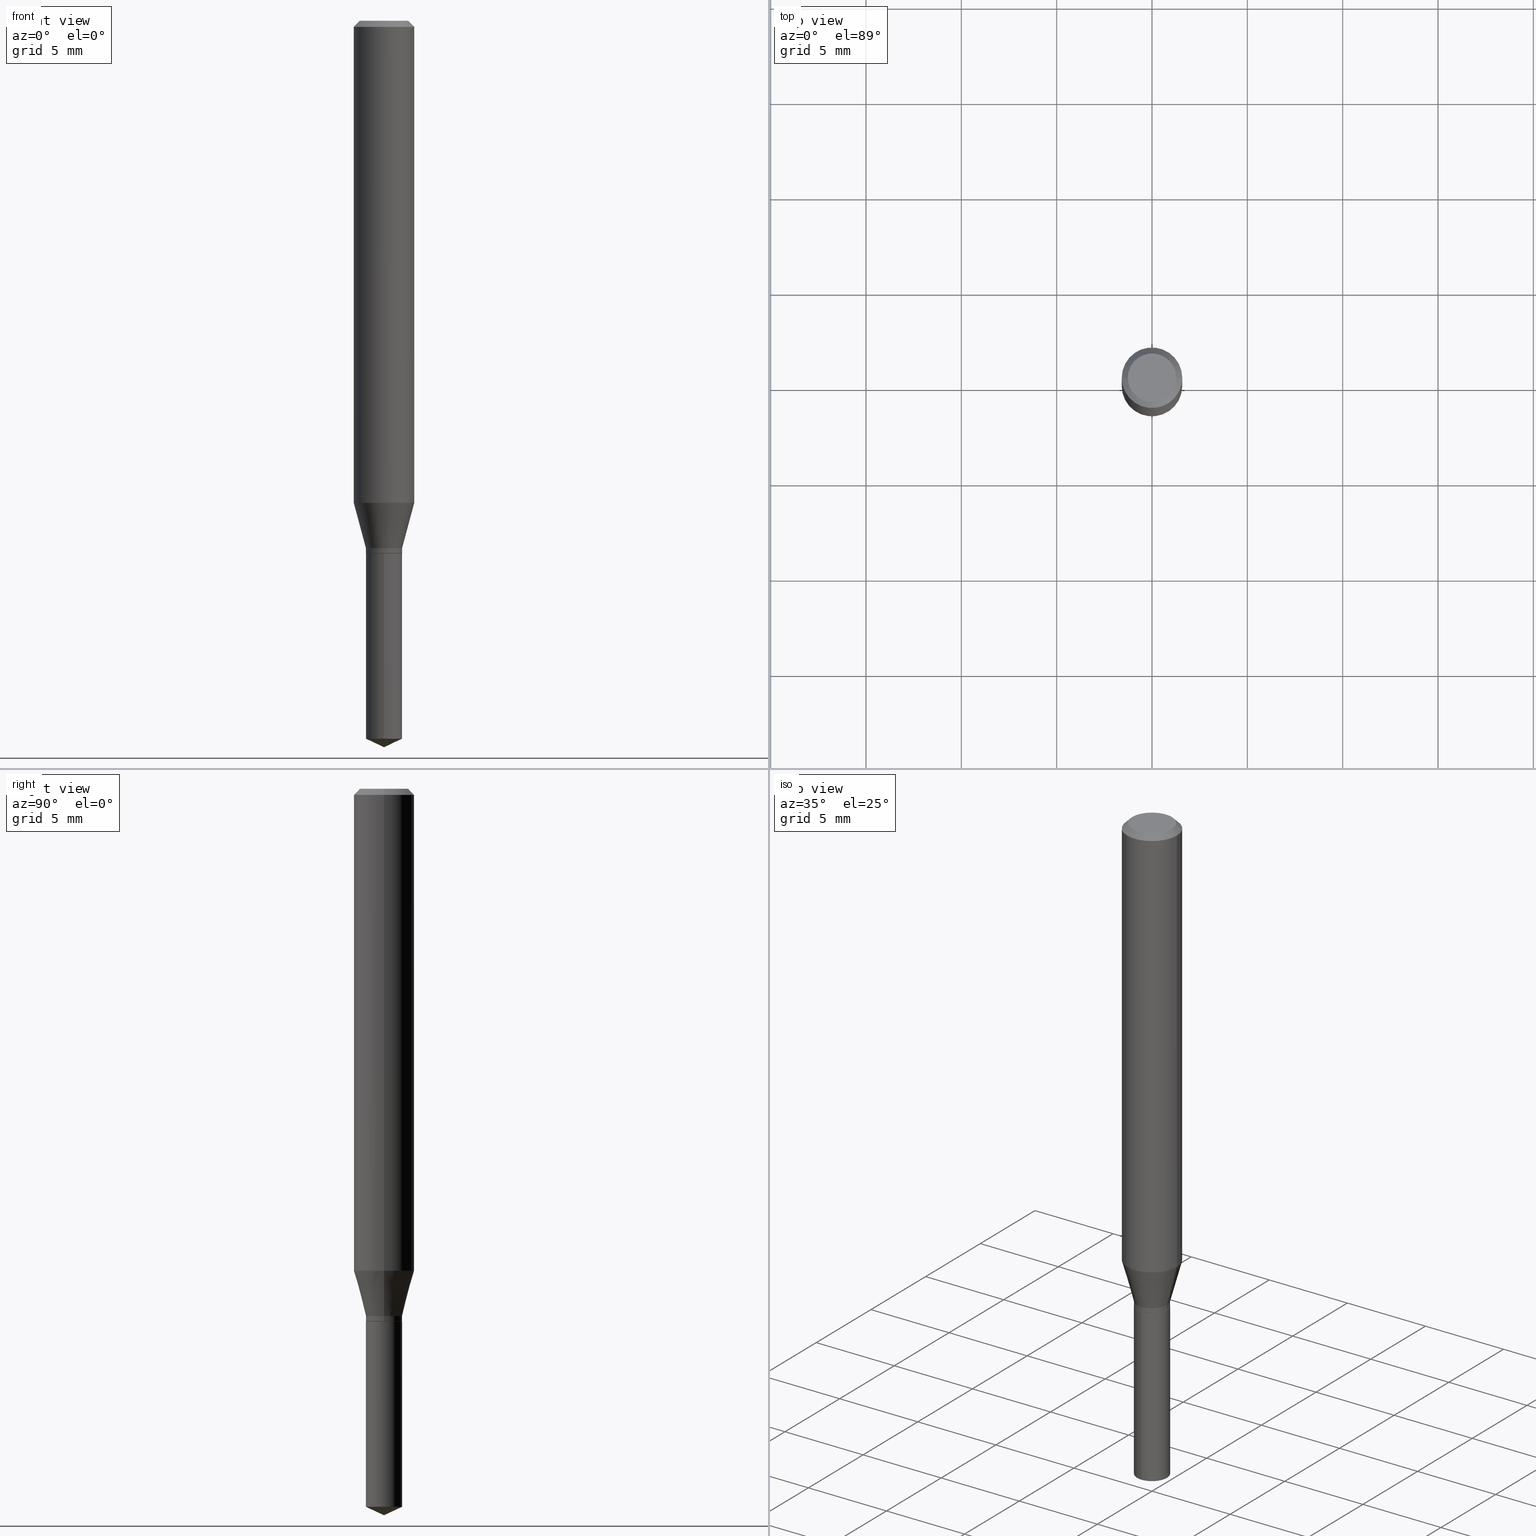
[diagram: canonical four-view strip — front | top / right | iso, engineering-drawing reading convention]
A machine part, canonical four-view strip (front | top / right | iso — engineering-drawing reading convention). The complete STEP part file that produces these views, byte-faithful:
ISO-10303-21;
HEADER;
FILE_DESCRIPTION (( 'STEP AP203' ),
    '1' );
FILE_NAME ('07184.STEP',
    '2024-04-23T19:55:12',
    ( '' ),
    ( '' ),
    'SwSTEP 2.0',
    'SolidWorks 2023',
    '' );
FILE_SCHEMA (( 'CONFIG_CONTROL_DESIGN' ));
ENDSEC;

DATA;
#1 = FACE_OUTER_BOUND ( 'NONE', #66, .T. ) ;
#2 = DIRECTION ( 'NONE',  ( -2.445468806185136877E-29, 3.491481338843145188E-15, 1.000000000000000000 ) ) ;
#3 = CYLINDRICAL_SURFACE ( 'NONE', #61, 0.06250000000000005551 ) ;
#4 = VERTEX_POINT ( 'NONE', #261 ) ;
#5 =( GEOMETRIC_REPRESENTATION_CONTEXT ( 3 ) GLOBAL_UNCERTAINTY_ASSIGNED_CONTEXT ( ( #307 ) ) GLOBAL_UNIT_ASSIGNED_CONTEXT ( ( #13, #126, #433 ) ) REPRESENTATION_CONTEXT ( 'NONE', 'WORKASPACE' ) );
#6 = CARTESIAN_POINT ( 'NONE',  ( 3.056836007731440977E-31, -4.364351673553961068E-17, -0.01250000000000008223 ) ) ;
#7 = CARTESIAN_POINT ( 'NONE',  ( -0.03740000000000000269, -3.554461323720950725E-15, -1.099499999999999922 ) ) ;
#8 = LINE ( 'NONE', #427, #336 ) ;
#9 = DIRECTION ( 'NONE',  ( 6.439704144417030353E-15, 0.9063077870366521571, 0.4226182617406946673 ) ) ;
#10 = DIRECTION ( 'NONE',  ( -6.328713451373374901E-15, -0.9063077870366492705, 0.4226182617407009956 ) ) ;
#11 = CARTESIAN_POINT ( 'NONE',  ( 0.06250000000000005551, -4.364351673553921131E-16, 3.047610484872463023E-30 ) ) ;
#12 = EDGE_CURVE ( 'NONE', #60, #82, #479, .T. ) ;
#13 =( CONVERSION_BASED_UNIT ( 'INCH', #247 ) LENGTH_UNIT ( ) NAMED_UNIT ( #16 ) );
#14 = DIRECTION ( 'NONE',  ( 1.000000000000000000, -6.982962677686264344E-15, 0.000000000000000000 ) ) ;
#15 = SECURITY_CLASSIFICATION_LEVEL ( 'unclassified' ) ;
#16 = DIMENSIONAL_EXPONENTS ( 1.000000000000000000, 0.000000000000000000, 0.000000000000000000, 0.000000000000000000, 0.000000000000000000, 0.000000000000000000, 0.000000000000000000 ) ;
#17 = DATE_AND_TIME ( #361, #39 ) ;
#18 = VERTEX_POINT ( 'NONE', #116 ) ;
#19 = EDGE_CURVE ( 'NONE', #219, #202, #324, .T. ) ;
#20 = CIRCLE ( 'NONE', #217, 0.03740000000000000269 ) ;
#21 = ORIENTED_EDGE ( 'NONE', *, *, #19, .T. ) ;
#22 = APPROVAL_ROLE ( '' ) ;
#23 = ADVANCED_BREP_SHAPE_REPRESENTATION ( '07184', ( #291, #308, #38 ), #5 ) ;
#24 = ORIENTED_EDGE ( 'NONE', *, *, #248, .T. ) ;
#25 = CARTESIAN_POINT ( 'NONE',  ( -2.611628041454301126E-16, -0.03740000000000517216, -1.482560093585003180 ) ) ;
#26 = ORIENTED_EDGE ( 'NONE', *, *, #473, .T. ) ;
#27 = FACE_OUTER_BOUND ( 'NONE', #255, .T. ) ;
#28 = CIRCLE ( 'NONE', #313, 0.03740000000000000269 ) ;
#29 = CONICAL_SURFACE ( 'NONE', #201, 0.06250000000000000000, 0.7853981633974452814 ) ;
#30 = VERTEX_POINT ( 'NONE', #463 ) ;
#31 = FACE_OUTER_BOUND ( 'NONE', #215, .T. ) ;
#32 = ORIENTED_EDGE ( 'NONE', *, *, #204, .T. ) ;
#33 = VERTEX_POINT ( 'NONE', #360 ) ;
#34 = CARTESIAN_POINT ( 'NONE',  ( 0.03690000000000000224, -4.098300795534083495E-15, -1.100000000000000089 ) ) ;
#35 = CARTESIAN_POINT ( 'NONE',  ( 0.03740000000000000269, -4.062687685877884033E-15, -1.088800000000000212 ) ) ;
#36 = EDGE_CURVE ( 'NONE', #437, #4, #328, .T. ) ;
#37 = CIRCLE ( 'NONE', #399, 0.03740000000000000269 ) ;
#38 = AXIS2_PLACEMENT_3D ( 'NONE', #323, #256, #164 ) ;
#39 = LOCAL_TIME ( 15, 55, 12.00000000000000000, #203 ) ;
#40 = ORIENTED_EDGE ( 'NONE', *, *, #12, .F. ) ;
#41 = DIRECTION ( 'NONE',  ( -2.445399690415121530E-29, 3.491580316559632610E-15, 1.000000000000000000 ) ) ;
#42 = DIRECTION ( 'NONE',  ( -2.445468806185136597E-29, 3.491481338843145583E-15, 1.000000000000000000 ) ) ;
#43 = EDGE_CURVE ( 'NONE', #141, #219, #37, .T. ) ;
#44 = CARTESIAN_POINT ( 'NONE',  ( -0.06250000000000005551, 4.440892098500630106E-16, -3.074334431409318916E-30 ) ) ;
#45 = LINE ( 'NONE', #11, #400 ) ;
#46 = AXIS2_PLACEMENT_3D ( 'NONE', #334, #304, #74 ) ;
#47 = AXIS2_PLACEMENT_3D ( 'NONE', #145, #391, #194 ) ;
#48 = DIRECTION ( 'NONE',  ( 1.000000000000000000, -6.982962677686266711E-15, 0.000000000000000000 ) ) ;
#49 = PLANE ( 'NONE',  #95 ) ;
#50 = EDGE_CURVE ( 'NONE', #33, #141, #275, .T. ) ;
#51 = DIRECTION ( 'NONE',  ( -2.445399690415121530E-29, 3.491580316559632610E-15, 1.000000000000000000 ) ) ;
#52 = COORDINATED_UNIVERSAL_TIME_OFFSET ( 5, 0, .BEHIND. ) ;
#53 = CIRCLE ( 'NONE', #46, 0.03740000000000000269 ) ;
#54 = DIRECTION ( 'NONE',  ( -2.445468806185136597E-29, 3.491481338843145583E-15, 1.000000000000000000 ) ) ;
#55 = APPROVAL_DATE_TIME ( #478, #310 ) ;
#56 = APPROVAL_STATUS ( 'not_yet_approved' ) ;
#57 = EDGE_CURVE ( 'NONE', #4, #437, #216, .T. ) ;
#58 = ORIENTED_EDGE ( 'NONE', *, *, #50, .T. ) ;
#59 = AXIS2_PLACEMENT_3D ( 'NONE', #279, #54, #14 ) ;
#60 = VERTEX_POINT ( 'NONE', #120 ) ;
#61 = AXIS2_PLACEMENT_3D ( 'NONE', #429, #393, #464 ) ;
#62 = CARTESIAN_POINT ( 'NONE',  ( 2.657429831743136776E-16, 0.03739999999999481933, -1.482560093585003180 ) ) ;
#63 = EDGE_LOOP ( 'NONE', ( #24, #107, #484, #446 ) ) ;
#64 = DIRECTION ( 'NONE',  ( -1.000000000000000000, 6.982962677686266711E-15, 0.000000000000000000 ) ) ;
#65 = EDGE_CURVE ( 'NONE', #333, #404, #344, .T. ) ;
#66 = EDGE_LOOP ( 'NONE', ( #142, #162, #233 ) ) ;
#67 = CLOSED_SHELL ( 'NONE', ( #179, #439, #305, #237, #483 ) ) ;
#68 = ORIENTED_EDGE ( 'NONE', *, *, #319, .T. ) ;
#69 = AXIS2_PLACEMENT_3D ( 'NONE', #210, #138, #413 ) ;
#70 = APPROVAL_PERSON_ORGANIZATION ( #130, #278, #468 ) ;
#71 = ORIENTED_EDGE ( 'NONE', *, *, #283, .F. ) ;
#72 = EDGE_CURVE ( 'NONE', #208, #363, #193, .T. ) ;
#73 = ORIENTED_EDGE ( 'NONE', *, *, #72, .T. ) ;
#74 = DIRECTION ( 'NONE',  ( -6.982962677686265922E-15, -1.000000000000000000, 3.652203200085913145E-15 ) ) ;
#75 = CC_DESIGN_PERSON_AND_ORGANIZATION_ASSIGNMENT ( #159, #99, ( #220 ) ) ;
#76 = EDGE_LOOP ( 'NONE', ( #174, #480, #444, #368 ) ) ;
#77 = CARTESIAN_POINT ( 'NONE',  ( 0.000000000000000000, 0.000000000000000000, 0.000000000000000000 ) ) ;
#78 = VECTOR ( 'NONE', #326, 39.37007874015748143 ) ;
#79 = VECTOR ( 'NONE', #223, 39.37007874015748143 ) ;
#80 = DIRECTION ( 'NONE',  ( -2.445468806185136597E-29, 3.491481338843145583E-15, 1.000000000000000000 ) ) ;
#81 = DIRECTION ( 'NONE',  ( -2.445399690415121810E-29, 3.491580316559632610E-15, 1.000000000000000000 ) ) ;
#82 = VERTEX_POINT ( 'NONE', #396 ) ;
#83 = CYLINDRICAL_SURFACE ( 'NONE', #418, 0.06250000000000005551 ) ;
#84 = CARTESIAN_POINT ( 'NONE',  ( 2.688792952400557567E-29, -3.838883732058038598E-15, -1.099499999999999922 ) ) ;
#85 = CARTESIAN_POINT ( 'NONE',  ( 3.668099535622682155E-29, -5.237370474839448718E-15, -1.500000000000000222 ) ) ;
#86 = FACE_OUTER_BOUND ( 'NONE', #297, .T. ) ;
#87 = CARTESIAN_POINT ( 'NONE',  ( -0.04999999999999999584, 3.709698922520826725E-16, -1.592040838894077649E-18 ) ) ;
#88 = CIRCLE ( 'NONE', #207, 0.03690000000000000224 ) ;
#89 = ADVANCED_FACE ( 'NONE', ( #92 ), #245, .T. ) ;
#90 = CARTESIAN_POINT ( 'NONE',  ( -0.06250000000000000000, -1.314963648218386938E-15, -0.01250000000000008223 ) ) ;
#91 = CC_DESIGN_PERSON_AND_ORGANIZATION_ASSIGNMENT ( #325, #287, ( #298 ) ) ;
#92 = FACE_OUTER_BOUND ( 'NONE', #448, .T. ) ;
#93 = FACE_OUTER_BOUND ( 'NONE', #412, .T. ) ;
#94 = CALENDAR_DATE ( 2024, 23, 4 ) ;
#95 = AXIS2_PLACEMENT_3D ( 'NONE', #188, #351, #113 ) ;
#96 = APPROVAL_STATUS ( 'not_yet_approved' ) ;
#97 = APPLICATION_PROTOCOL_DEFINITION ( 'international standard', 'config_control_design', 1994, #454 ) ;
#98 = ORIENTED_EDGE ( 'NONE', *, *, #347, .F. ) ;
#99 = PERSON_AND_ORGANIZATION_ROLE ( 'creator' ) ;
#100 = DIRECTION ( 'NONE',  ( -2.445468806185136597E-29, 3.491481338843145583E-15, 1.000000000000000000 ) ) ;
#101 = EDGE_CURVE ( 'NONE', #363, #487, #28, .T. ) ;
#102 = ORIENTED_EDGE ( 'NONE', *, *, #260, .T. ) ;
#103 = VECTOR ( 'NONE', #450, 39.37007874015748143 ) ;
#104 = AXIS2_PLACEMENT_3D ( 'NONE', #398, #311, #458 ) ;
#105 = DIRECTION ( 'NONE',  ( 1.000000000000000000, -6.982962677686261189E-15, 0.000000000000000000 ) ) ;
#106 = ORIENTED_EDGE ( 'NONE', *, *, #461, .T. ) ;
#107 = ORIENTED_EDGE ( 'NONE', *, *, #455, .T. ) ;
#108 = EDGE_LOOP ( 'NONE', ( #136, #205 ) ) ;
#109 = CARTESIAN_POINT ( 'NONE',  ( 2.662626436174376772E-29, -3.801524881732417633E-15, -1.088800000000000212 ) ) ;
#110 = CONICAL_SURFACE ( 'NONE', #481, 0.03690000000000000224, 0.7853981633974141952 ) ;
#111 = AXIS2_PLACEMENT_3D ( 'NONE', #77, #423, #266 ) ;
#112 = EDGE_CURVE ( 'NONE', #487, #331, #8, .T. ) ;
#113 = DIRECTION ( 'NONE',  ( 6.982962677686265922E-15, 1.000000000000000000, -3.491580316559632610E-15 ) ) ;
#114 = VECTOR ( 'NONE', #456, 39.37007874015748854 ) ;
#115 = DIRECTION ( 'NONE',  ( 1.000000000000000000, -6.982962677686267499E-15, 4.876176775795936353E-29 ) ) ;
#116 = CARTESIAN_POINT ( 'NONE',  ( -0.03690000000000000224, -3.575789976057872409E-15, -1.100000000000000089 ) ) ;
#117 = CARTESIAN_POINT ( 'NONE',  ( 2.662626436174376772E-29, -3.801524881732417633E-15, -1.088800000000000212 ) ) ;
#118 = CARTESIAN_POINT ( 'NONE',  ( 0.03740000000000000269, -4.100046536203504998E-15, -1.099499999999999922 ) ) ;
#119 = PRODUCT_DEFINITION_SHAPE ( 'NONE', 'NONE',  #220 ) ;
#120 = CARTESIAN_POINT ( 'NONE',  ( 0.06250000000000012490, -3.910897366756753978E-15, -0.9951255247300211382 ) ) ;
#121 = DIRECTION ( 'NONE',  ( -2.445468806185136597E-29, 3.491481338843145583E-15, 1.000000000000000000 ) ) ;
#122 = AXIS2_PLACEMENT_3D ( 'NONE', #345, #490, #149 ) ;
#123 = DIRECTION ( 'NONE',  ( -2.445468806185136597E-29, 3.491481338843145583E-15, 1.000000000000000000 ) ) ;
#124 = DIRECTION ( 'NONE',  ( 1.000000000000000000, -6.982962677686261189E-15, 0.000000000000000000 ) ) ;
#125 = DIRECTION ( 'NONE',  ( -2.445399690415121530E-29, 3.491580316559632610E-15, 1.000000000000000000 ) ) ;
#126 =( NAMED_UNIT ( * ) PLANE_ANGLE_UNIT ( ) SI_UNIT ( $, .RADIAN. ) );
#127 = CC_DESIGN_APPROVAL ( #278, ( #220 ) ) ;
#128 = APPROVAL_STATUS ( 'not_yet_approved' ) ;
#129 = ORIENTED_EDGE ( 'NONE', *, *, #43, .T. ) ;
#130 = PERSON_AND_ORGANIZATION ( #402, #288 ) ;
#131 = DIRECTION ( 'NONE',  ( -2.445399690415121530E-29, 3.491580316559632610E-15, 1.000000000000000000 ) ) ;
#132 = ORIENTED_EDGE ( 'NONE', *, *, #200, .T. ) ;
#133 = APPLICATION_PROTOCOL_DEFINITION ( 'international standard', 'config_control_design', 1994, #268 ) ;
#134 = CARTESIAN_POINT ( 'NONE',  ( 3.056836007731440977E-31, -4.364351673553961068E-17, -0.01250000000000008223 ) ) ;
#135 = PRODUCT_RELATED_PRODUCT_CATEGORY ( 'detail', '', ( #388 ) ) ;
#136 = ORIENTED_EDGE ( 'NONE', *, *, #432, .T. ) ;
#137 = VECTOR ( 'NONE', #187, 39.37007874015748143 ) ;
#138 = DIRECTION ( 'NONE',  ( -2.445468806185136597E-29, 3.491481338843145583E-15, 1.000000000000000000 ) ) ;
#139 = ORIENTED_EDGE ( 'NONE', *, *, #405, .T. ) ;
#140 = DIRECTION ( 'NONE',  ( 2.445468806185136597E-29, -3.491481338843145583E-15, -1.000000000000000000 ) ) ;
#141 = VERTEX_POINT ( 'NONE', #25 ) ;
#142 = ORIENTED_EDGE ( 'NONE', *, *, #50, .F. ) ;
#143 = AXIS2_PLACEMENT_3D ( 'NONE', #354, #42, #157 ) ;
#144 = DESIGN_CONTEXT ( 'detailed design', #454, 'design' ) ;
#145 = CARTESIAN_POINT ( 'NONE',  ( -9.260740279983036507E-28, 1.322265303911854087E-13, 37.87007874015748143 ) ) ;
#146 = EDGE_CURVE ( 'NONE', #82, #60, #321, .T. ) ;
#147 = FACE_OUTER_BOUND ( 'NONE', #377, .T. ) ;
#148 = LINE ( 'NONE', #44, #137 ) ;
#149 = DIRECTION ( 'NONE',  ( 1.000000000000000000, -6.982962677686261977E-15, 0.000000000000000000 ) ) ;
#150 = VECTOR ( 'NONE', #10, 39.37007874015748143 ) ;
#151 = DIRECTION ( 'NONE',  ( 2.445468806185136597E-29, -3.491481338843145583E-15, -1.000000000000000000 ) ) ;
#152 = EDGE_CURVE ( 'NONE', #4, #333, #294, .T. ) ;
#153 = CARTESIAN_POINT ( 'NONE',  ( -2.611628041454394310E-16, -0.03740000000000384683, -1.099999999999999867 ) ) ;
#154 = CARTESIAN_POINT ( 'NONE',  ( 0.06250000000000000000, -4.800786840909312308E-16, -0.01250000000000008223 ) ) ;
#155 = ADVANCED_FACE ( 'NONE', ( #339 ), #110, .T. ) ;
#156 = CARTESIAN_POINT ( 'NONE',  ( 3.893286209682126177E-47, -5.558580879666067980E-33, -1.592040838891559689E-18 ) ) ;
#157 = DIRECTION ( 'NONE',  ( 1.000000000000000000, -6.982962677686261977E-15, 0.000000000000000000 ) ) ;
#158 = AXIS2_PLACEMENT_3D ( 'NONE', #387, #41, #420 ) ;
#159 = PERSON_AND_ORGANIZATION ( #402, #288 ) ;
#160 = ADVANCED_FACE ( 'NONE', ( #257 ), #329, .T. ) ;
#161 = DATE_TIME_ROLE ( 'classification_date' ) ;
#162 = ORIENTED_EDGE ( 'NONE', *, *, #347, .T. ) ;
#163 = AXIS2_PLACEMENT_3D ( 'NONE', #226, #80, #231 ) ;
#164 = DIRECTION ( 'NONE',  ( 1.000000000000000000, 0.000000000000000000, 0.000000000000000000 ) ) ;
#165 = EDGE_CURVE ( 'NONE', #202, #30, #53, .T. ) ;
#166 = VERTEX_POINT ( 'NONE', #372 ) ;
#167 = COORDINATED_UNIVERSAL_TIME_OFFSET ( 5, 0, .BEHIND. ) ;
#168 = LINE ( 'NONE', #212, #79 ) ;
#169 = CC_DESIGN_PERSON_AND_ORGANIZATION_ASSIGNMENT ( #358, #441, ( #474 ) ) ;
#170 = ORIENTED_EDGE ( 'NONE', *, *, #473, .F. ) ;
#171 = CARTESIAN_POINT ( 'NONE',  ( -0.03740000000000000269, -3.535781898558140243E-15, -1.088800000000000212 ) ) ;
#172 = ORIENTED_EDGE ( 'NONE', *, *, #432, .F. ) ;
#173 = ADVANCED_FACE ( 'NONE', ( #27 ), #189, .T. ) ;
#174 = ORIENTED_EDGE ( 'NONE', *, *, #57, .F. ) ;
#175 = ORIENTED_EDGE ( 'NONE', *, *, #152, .F. ) ;
#176 = CARTESIAN_POINT ( 'NONE',  ( 3.056836007731440977E-31, -4.364351673553961068E-17, -0.01250000000000008223 ) ) ;
#177 = DIRECTION ( 'NONE',  ( 0.2588190451025213501, 1.565188264969621968E-15, 0.9659258262890682012 ) ) ;
#178 = CONICAL_SURFACE ( 'NONE', #143, 0.03740000000000000269, 0.2617993877991500740 ) ;
#179 = ADVANCED_FACE ( 'NONE', ( #447 ), #302, .T. ) ;
#180 = ORIENTED_EDGE ( 'NONE', *, *, #36, .F. ) ;
#181 = FACE_OUTER_BOUND ( 'NONE', #381, .T. ) ;
#182 = DIRECTION ( 'NONE',  ( -6.982962677686265922E-15, -1.000000000000000000, 0.000000000000000000 ) ) ;
#183 = ORIENTED_EDGE ( 'NONE', *, *, #65, .F. ) ;
#184 = LINE ( 'NONE', #348, #482 ) ;
#185 = FACE_OUTER_BOUND ( 'NONE', #108, .T. ) ;
#186 = CLOSED_SHELL ( 'NONE', ( #160, #274, #367, #467, #89, #224, #192, #353, #173, #335, #378, #155 ) ) ;
#187 = DIRECTION ( 'NONE',  ( -2.445468806185136877E-29, 3.491481338843145188E-15, 1.000000000000000000 ) ) ;
#188 = CARTESIAN_POINT ( 'NONE',  ( 2.690015686803650369E-29, -3.840629472727460101E-15, -1.100000000000000089 ) ) ;
#189 = CONICAL_SURFACE ( 'NONE', #472, 0.06250000000000000000, 0.7853981633974452814 ) ;
#190 = LOCAL_TIME ( 15, 55, 12.00000000000000000, #251 ) ;
#191 = ORIENTED_EDGE ( 'NONE', *, *, #414, .T. ) ;
#192 = ADVANCED_FACE ( 'NONE', ( #31 ), #409, .T. ) ;
#193 = LINE ( 'NONE', #352, #306 ) ;
#194 = DIRECTION ( 'NONE',  ( -6.982962677686266711E-15, -1.000000000000000000, 3.520397390770453475E-15 ) ) ;
#195 = LINE ( 'NONE', #424, #114 ) ;
#196 = DIRECTION ( 'NONE',  ( 1.000000000000000000, -6.982962677686261977E-15, 0.000000000000000000 ) ) ;
#197 = DIRECTION ( 'NONE',  ( -2.445399690415121530E-29, 3.491580316559632610E-15, 1.000000000000000000 ) ) ;
#198 = DIRECTION ( 'NONE',  ( 1.000000000000000000, -6.982962677686265922E-15, 4.875957971899673662E-29 ) ) ;
#199 = APPROVAL_DATE_TIME ( #290, #278 ) ;
#200 = EDGE_CURVE ( 'NONE', #437, #404, #168, .T. ) ;
#201 = AXIS2_PLACEMENT_3D ( 'NONE', #6, #151, #459 ) ;
#202 = VERTEX_POINT ( 'NONE', #417 ) ;
#203 = COORDINATED_UNIVERSAL_TIME_OFFSET ( 5, 0, .BEHIND. ) ;
#204 = EDGE_CURVE ( 'NONE', #331, #82, #369, .T. ) ;
#205 = ORIENTED_EDGE ( 'NONE', *, *, #165, .T. ) ;
#206 = ORIENTED_EDGE ( 'NONE', *, *, #312, .T. ) ;
#207 = AXIS2_PLACEMENT_3D ( 'NONE', #320, #466, #124 ) ;
#208 = VERTEX_POINT ( 'NONE', #34 ) ;
#209 = DATE_AND_TIME ( #407, #190 ) ;
#210 = CARTESIAN_POINT ( 'NONE',  ( 2.690015686803650369E-29, -3.840629472727460101E-15, -1.100000000000000089 ) ) ;
#211 = EDGE_LOOP ( 'NONE', ( #341, #303 ) ) ;
#212 = CARTESIAN_POINT ( 'NONE',  ( -0.06250000000000000000, 3.927916506198521080E-16, -0.01250000000000008223 ) ) ;
#213 = ORIENTED_EDGE ( 'NONE', *, *, #405, .F. ) ;
#214 = EDGE_CURVE ( 'NONE', #404, #333, #330, .T. ) ;
#215 = EDGE_LOOP ( 'NONE', ( #370, #338, #206, #375 ) ) ;
#216 = CIRCLE ( 'NONE', #489, 0.04999999999999999584 ) ;
#217 = AXIS2_PLACEMENT_3D ( 'NONE', #273, #51, #182 ) ;
#218 = DIRECTION ( 'NONE',  ( -2.445468806185136597E-29, 3.491481338843145583E-15, 1.000000000000000000 ) ) ;
#219 = VERTEX_POINT ( 'NONE', #62 ) ;
#220 = PRODUCT_DEFINITION ( 'UNKNOWN', '', #474, #144 ) ;
#221 = EDGE_LOOP ( 'NONE', ( #422, #364, #106, #385 ) ) ;
#222 = APPROVAL_DATE_TIME ( #371, #227 ) ;
#223 = DIRECTION ( 'NONE',  ( -0.7071067811865453523, 2.468850131082234184E-15, -0.7071067811865496822 ) ) ;
#224 = ADVANCED_FACE ( 'NONE', ( #181 ), #234, .T. ) ;
#225 = FACE_OUTER_BOUND ( 'NONE', #76, .T. ) ;
#226 = CARTESIAN_POINT ( 'NONE',  ( 2.690015686803650369E-29, -3.840629472727460101E-15, -1.100000000000000089 ) ) ;
#227 = APPROVAL ( #128, 'UNSPECIFIED' ) ;
#228 = AXIS2_PLACEMENT_3D ( 'NONE', #349, #270, #460 ) ;
#229 = CC_DESIGN_APPROVAL ( #227, ( #298 ) ) ;
#230 = ORIENTED_EDGE ( 'NONE', *, *, #265, .T. ) ;
#231 = DIRECTION ( 'NONE',  ( 1.000000000000000000, -6.982962677686261189E-15, 0.000000000000000000 ) ) ;
#232 = DIRECTION ( 'NONE',  ( -6.982962677686266711E-15, -1.000000000000000000, 3.520397390770453475E-15 ) ) ;
#233 = ORIENTED_EDGE ( 'NONE', *, *, #43, .F. ) ;
#234 = CYLINDRICAL_SURFACE ( 'NONE', #111, 0.03740000000000000269 ) ;
#235 = CARTESIAN_POINT ( 'NONE',  ( 1.946643104841063088E-47, -2.779290439833033990E-33, -7.960204194457798443E-19 ) ) ;
#236 = DIRECTION ( 'NONE',  ( -2.445468806185136597E-29, 3.491481338843145583E-15, 1.000000000000000000 ) ) ;
#237 = ADVANCED_FACE ( 'NONE', ( #382 ), #350, .T. ) ;
#238 = CARTESIAN_POINT ( 'NONE',  ( 3.056836007731440977E-31, -4.364351673553961068E-17, -0.01250000000000008223 ) ) ;
#239 = CARTESIAN_POINT ( 'NONE',  ( 3.668252923656895710E-29, -5.237152723863177100E-15, -1.500000000000000222 ) ) ;
#240 = AXIS2_PLACEMENT_3D ( 'NONE', #438, #131, #366 ) ;
#241 = LOCAL_TIME ( 15, 55, 12.00000000000000000, #52 ) ;
#242 = LOCAL_TIME ( 15, 55, 12.00000000000000000, #299 ) ;
#243 = DIRECTION ( 'NONE',  ( 0.7071067811865232589, -2.468850131082003836E-15, 0.7071067811865715536 ) ) ;
#244 = CARTESIAN_POINT ( 'NONE',  ( 0.000000000000000000, 0.000000000000000000, 0.000000000000000000 ) ) ;
#245 = CYLINDRICAL_SURFACE ( 'NONE', #281, 0.03740000000000000269 ) ;
#246 = CARTESIAN_POINT ( 'NONE',  ( -0.03740000000000000269, -3.554461323720950725E-15, -1.088800000000000212 ) ) ;
#247 = LENGTH_MEASURE_WITH_UNIT ( LENGTH_MEASURE( 0.02539999999999999897 ), #471 );
#248 = EDGE_CURVE ( 'NONE', #208, #18, #249, .T. ) ;
#249 = CIRCLE ( 'NONE', #163, 0.03690000000000000224 ) ;
#250 = ORIENTED_EDGE ( 'NONE', *, *, #165, .F. ) ;
#251 = COORDINATED_UNIVERSAL_TIME_OFFSET ( 5, 0, .BEHIND. ) ;
#252 = MECHANICAL_CONTEXT ( 'NONE', #268, 'mechanical' ) ;
#253 = DIRECTION ( 'NONE',  ( -2.445468806185136597E-29, 3.491481338843145583E-15, 1.000000000000000000 ) ) ;
#254 = AXIS2_PLACEMENT_3D ( 'NONE', #176, #253, #408 ) ;
#255 = EDGE_LOOP ( 'NONE', ( #175, #180, #132, #362 ) ) ;
#256 = DIRECTION ( 'NONE',  ( 0.000000000000000000, 0.000000000000000000, 1.000000000000000000 ) ) ;
#257 = FACE_OUTER_BOUND ( 'NONE', #63, .T. ) ;
#258 = ORIENTED_EDGE ( 'NONE', *, *, #390, .T. ) ;
#259 = CARTESIAN_POINT ( 'NONE',  ( 0.06250000000000000000, -4.724246415962602840E-16, -0.01250000000000008223 ) ) ;
#260 = EDGE_CURVE ( 'NONE', #363, #166, #184, .T. ) ;
#261 = CARTESIAN_POINT ( 'NONE',  ( 0.04999999999999999584, -4.077247707424184212E-16, -1.592040838888913461E-18 ) ) ;
#262 = ORIENTED_EDGE ( 'NONE', *, *, #112, .T. ) ;
#263 = APPROVAL_PERSON_ORGANIZATION ( #403, #310, #22 ) ;
#264 = DIRECTION ( 'NONE',  ( 1.000000000000000000, -6.982962677686261977E-15, 0.000000000000000000 ) ) ;
#265 = EDGE_CURVE ( 'NONE', #82, #404, #148, .T. ) ;
#266 = DIRECTION ( 'NONE',  ( 1.000000000000000000, -6.982962677686266711E-15, 4.876176775795935793E-29 ) ) ;
#267 = EDGE_LOOP ( 'NONE', ( #476, #139, #191, #250 ) ) ;
#268 = APPLICATION_CONTEXT ( 'configuration controlled 3d designs of mechanical parts and assemblies' ) ;
#269 = ORIENTED_EDGE ( 'NONE', *, *, #260, .F. ) ;
#270 = DIRECTION ( 'NONE',  ( -2.445468806185136597E-29, 3.491481338843145583E-15, 1.000000000000000000 ) ) ;
#271 = CIRCLE ( 'NONE', #228, 0.03740000000000000269 ) ;
#272 = DIRECTION ( 'NONE',  ( 1.000000000000000000, -6.982962677686266711E-15, 4.876176775795935793E-29 ) ) ;
#273 = CARTESIAN_POINT ( 'NONE',  ( 3.625528021221597091E-29, -5.176368765390068411E-15, -1.482560093585003180 ) ) ;
#274 = ADVANCED_FACE ( 'NONE', ( #225 ), #29, .T. ) ;
#275 = LINE ( 'NONE', #85, #150 ) ;
#276 = DIRECTION ( 'NONE',  ( -2.445468806185136597E-29, 3.491481338843145583E-15, 1.000000000000000000 ) ) ;
#277 = LINE ( 'NONE', #153, #452 ) ;
#278 = APPROVAL ( #56, 'UNSPECIFIED' ) ;
#279 = CARTESIAN_POINT ( 'NONE',  ( 2.433548428965882427E-29, -3.474462199401361914E-15, -0.9951255247300211382 ) ) ;
#280 = FACE_OUTER_BOUND ( 'NONE', #449, .T. ) ;
#281 = AXIS2_PLACEMENT_3D ( 'NONE', #332, #462, #272 ) ;
#282 = ORIENTED_EDGE ( 'NONE', *, *, #414, .F. ) ;
#283 = EDGE_CURVE ( 'NONE', #331, #166, #435, .T. ) ;
#284 = DIRECTION ( 'NONE',  ( 1.000000000000000000, -6.982962677686265922E-15, 4.875957971899673662E-29 ) ) ;
#285 = FACE_OUTER_BOUND ( 'NONE', #211, .T. ) ;
#286 = CARTESIAN_POINT ( 'NONE',  ( 3.625528021221597091E-29, -5.176368765390068411E-15, -1.482560093585003180 ) ) ;
#287 = PERSON_AND_ORGANIZATION_ROLE ( 'classification_officer' ) ;
#288 = ORGANIZATION ( 'UNSPECIFIED', 'UNSPECIFIED', '' ) ;
#289 = APPROVAL_ROLE ( '' ) ;
#290 = DATE_AND_TIME ( #94, #241 ) ;
#291 = MANIFOLD_SOLID_BREP ( 'Body-Move/Copy2[1]', #67 ) ;
#292 = ORIENTED_EDGE ( 'NONE', *, *, #248, .F. ) ;
#293 = PERSON_AND_ORGANIZATION_ROLE ( 'creator' ) ;
#294 = LINE ( 'NONE', #259, #103 ) ;
#295 = AXIS2_PLACEMENT_3D ( 'NONE', #238, #430, #48 ) ;
#296 = AXIS2_PLACEMENT_3D ( 'NONE', #109, #100, #264 ) ;
#297 = EDGE_LOOP ( 'NONE', ( #98, #58, #213 ) ) ;
#298 = SECURITY_CLASSIFICATION ( '', '', #15 ) ;
#299 = COORDINATED_UNIVERSAL_TIME_OFFSET ( 5, 0, .BEHIND. ) ;
#300 = DIRECTION ( 'NONE',  ( -2.445468806185136597E-29, 3.491481338843145583E-15, 1.000000000000000000 ) ) ;
#301 = ORIENTED_EDGE ( 'NONE', *, *, #112, .F. ) ;
#302 = CYLINDRICAL_SURFACE ( 'NONE', #240, 0.03740000000000000269 ) ;
#303 = ORIENTED_EDGE ( 'NONE', *, *, #57, .T. ) ;
#304 = DIRECTION ( 'NONE',  ( -2.445399690415121530E-29, 3.491580316559632610E-15, 1.000000000000000000 ) ) ;
#305 = ADVANCED_FACE ( 'NONE', ( #86 ), #428, .T. ) ;
#306 = VECTOR ( 'NONE', #243, 39.37007874015748854 ) ;
#307 = UNCERTAINTY_MEASURE_WITH_UNIT (LENGTH_MEASURE( 1.000000000000000082E-05 ), #13, 'distance_accuracy_value', 'NONE');
#308 = MANIFOLD_SOLID_BREP ( 'Body-Move/Copy2[2]', #186 ) ;
#309 = CIRCLE ( 'NONE', #374, 0.03740000000000000269 ) ;
#310 = APPROVAL ( #96, 'UNSPECIFIED' ) ;
#311 = DIRECTION ( 'NONE',  ( -2.438088387897960049E-29, 3.491481338843145188E-15, 1.000000000000000000 ) ) ;
#312 = EDGE_CURVE ( 'NONE', #166, #60, #488, .T. ) ;
#313 = AXIS2_PLACEMENT_3D ( 'NONE', #84, #236, #196 ) ;
#314 = PLANE ( 'NONE',  #457 ) ;
#315 = AXIS2_PLACEMENT_3D ( 'NONE', #356, #421, #232 ) ;
#316 = CC_DESIGN_PERSON_AND_ORGANIZATION_ASSIGNMENT ( #436, #475, ( #388 ) ) ;
#317 = DIRECTION ( 'NONE',  ( -1.000000000000000000, 6.982962677686265922E-15, -4.876176775795935793E-29 ) ) ;
#318 = LINE ( 'NONE', #239, #442 ) ;
#319 = EDGE_CURVE ( 'NONE', #166, #331, #392, .T. ) ;
#320 = CARTESIAN_POINT ( 'NONE',  ( 2.690015686803650369E-29, -3.840629472727460101E-15, -1.100000000000000089 ) ) ;
#321 = CIRCLE ( 'NONE', #451, 0.06250000000000012490 ) ;
#322 = CC_DESIGN_DATE_AND_TIME_ASSIGNMENT ( #17, #161, ( #298 ) ) ;
#323 = CARTESIAN_POINT ( 'NONE',  ( 0.000000000000000000, 0.000000000000000000, 0.000000000000000000 ) ) ;
#324 = LINE ( 'NONE', #357, #78 ) ;
#325 = PERSON_AND_ORGANIZATION ( #402, #288 ) ;
#326 = DIRECTION ( 'NONE',  ( -2.445399690415121810E-29, 3.491580316559632610E-15, 1.000000000000000000 ) ) ;
#327 = PERSON_AND_ORGANIZATION ( #402, #288 ) ;
#328 = CIRCLE ( 'NONE', #373, 0.04999999999999999584 ) ;
#329 = CONICAL_SURFACE ( 'NONE', #69, 0.03690000000000000224, 0.7853981633974141952 ) ;
#330 = CIRCLE ( 'NONE', #254, 0.06250000000000000000 ) ;
#331 = VERTEX_POINT ( 'NONE', #246 ) ;
#332 = CARTESIAN_POINT ( 'NONE',  ( 0.000000000000000000, 0.000000000000000000, 0.000000000000000000 ) ) ;
#333 = VERTEX_POINT ( 'NONE', #154 ) ;
#334 = CARTESIAN_POINT ( 'NONE',  ( 2.690015686803650369E-29, -3.840629472727460101E-15, -1.100000000000000089 ) ) ;
#335 = ADVANCED_FACE ( 'NONE', ( #285 ), #314, .F. ) ;
#336 = VECTOR ( 'NONE', #343, 39.37007874015748143 ) ;
#337 = CONICAL_SURFACE ( 'NONE', #315, 84.42940631927434936, 1.134464013796316006 ) ;
#338 = ORIENTED_EDGE ( 'NONE', *, *, #283, .T. ) ;
#339 = FACE_OUTER_BOUND ( 'NONE', #415, .T. ) ;
#340 = ORIENTED_EDGE ( 'NONE', *, *, #390, .F. ) ;
#341 = ORIENTED_EDGE ( 'NONE', *, *, #36, .T. ) ;
#342 = EDGE_LOOP ( 'NONE', ( #129, #21, #172, #282 ) ) ;
#343 = DIRECTION ( 'NONE',  ( -2.445468806185136877E-29, 3.491481338843145188E-15, 1.000000000000000000 ) ) ;
#344 = CIRCLE ( 'NONE', #295, 0.06250000000000000000 ) ;
#345 = CARTESIAN_POINT ( 'NONE',  ( 2.662626436174376772E-29, -3.801524881732417633E-15, -1.088800000000000212 ) ) ;
#346 = DIRECTION ( 'NONE',  ( -2.445468806185136877E-29, 3.491481338843145188E-15, 1.000000000000000000 ) ) ;
#347 = EDGE_CURVE ( 'NONE', #33, #219, #318, .T. ) ;
#348 = CARTESIAN_POINT ( 'NONE',  ( 0.03740000000000000269, -2.611628041454664002E-16, 1.823690114147680082E-30 ) ) ;
#349 = CARTESIAN_POINT ( 'NONE',  ( 2.688792952400557567E-29, -3.838883732058038598E-15, -1.099499999999999922 ) ) ;
#350 = CYLINDRICAL_SURFACE ( 'NONE', #158, 0.03740000000000000269 ) ;
#351 = DIRECTION ( 'NONE',  ( 2.445399690415121250E-29, -3.491580316559632610E-15, -1.000000000000000000 ) ) ;
#352 = CARTESIAN_POINT ( 'NONE',  ( 0.03690000000000000224, -4.098300795534083495E-15, -1.100000000000000089 ) ) ;
#353 = ADVANCED_FACE ( 'NONE', ( #386 ), #3, .T. ) ;
#354 = CARTESIAN_POINT ( 'NONE',  ( 2.662626436174376772E-29, -3.801524881732417633E-15, -1.088800000000000212 ) ) ;
#355 = ORIENTED_EDGE ( 'NONE', *, *, #455, .F. ) ;
#356 = CARTESIAN_POINT ( 'NONE',  ( -9.260740279983036507E-28, 1.322265303911854087E-13, 37.87007874015748143 ) ) ;
#357 = CARTESIAN_POINT ( 'NONE',  ( 2.657429831743043592E-16, 0.03739999999999615854, -1.100000000000000089 ) ) ;
#358 = PERSON_AND_ORGANIZATION ( #402, #288 ) ;
#359 = VECTOR ( 'NONE', #380, 39.37007874015747433 ) ;
#360 = CARTESIAN_POINT ( 'NONE',  ( 3.668099535622682715E-29, -5.237370474839449507E-15, -1.500000000000000222 ) ) ;
#361 = CALENDAR_DATE ( 2024, 23, 4 ) ;
#362 = ORIENTED_EDGE ( 'NONE', *, *, #214, .T. ) ;
#363 = VERTEX_POINT ( 'NONE', #118 ) ;
#364 = ORIENTED_EDGE ( 'NONE', *, *, #146, .T. ) ;
#365 = DATE_TIME_ROLE ( 'creation_date' ) ;
#366 = DIRECTION ( 'NONE',  ( -6.982962677686265922E-15, -1.000000000000000000, 3.652203200085913145E-15 ) ) ;
#367 = ADVANCED_FACE ( 'NONE', ( #93 ), #83, .T. ) ;
#368 = ORIENTED_EDGE ( 'NONE', *, *, #200, .F. ) ;
#369 = LINE ( 'NONE', #171, #359 ) ;
#370 = ORIENTED_EDGE ( 'NONE', *, *, #204, .F. ) ;
#371 = DATE_AND_TIME ( #411, #242 ) ;
#372 = CARTESIAN_POINT ( 'NONE',  ( 0.03740000000000000269, -4.062687685877884033E-15, -1.088800000000000212 ) ) ;
#373 = AXIS2_PLACEMENT_3D ( 'NONE', #156, #469, #198 ) ;
#374 = AXIS2_PLACEMENT_3D ( 'NONE', #397, #197, #389 ) ;
#375 = ORIENTED_EDGE ( 'NONE', *, *, #146, .F. ) ;
#376 = DIRECTION ( 'NONE',  ( 1.000000000000000000, -6.982962677686264344E-15, 0.000000000000000000 ) ) ;
#377 = EDGE_LOOP ( 'NONE', ( #68, #32, #40, #379 ) ) ;
#378 = ADVANCED_FACE ( 'NONE', ( #280 ), #426, .F. ) ;
#379 = ORIENTED_EDGE ( 'NONE', *, *, #312, .F. ) ;
#380 = DIRECTION ( 'NONE',  ( -0.2588190451025213501, 5.211531920934551042E-15, 0.9659258262890682012 ) ) ;
#381 = EDGE_LOOP ( 'NONE', ( #301, #258, #102, #71 ) ) ;
#382 = FACE_OUTER_BOUND ( 'NONE', #267, .T. ) ;
#383 = ORIENTED_EDGE ( 'NONE', *, *, #461, .F. ) ;
#384 = AXIS2_PLACEMENT_3D ( 'NONE', #117, #276, #425 ) ;
#385 = ORIENTED_EDGE ( 'NONE', *, *, #214, .F. ) ;
#386 = FACE_OUTER_BOUND ( 'NONE', #221, .T. ) ;
#387 = CARTESIAN_POINT ( 'NONE',  ( 2.690015686803650369E-29, -3.840629472727460101E-15, -1.100000000000000089 ) ) ;
#388 = PRODUCT ( '07184', '07184', '', ( #252 ) ) ;
#389 = DIRECTION ( 'NONE',  ( -6.982962677686265922E-15, -1.000000000000000000, 3.652203200085913145E-15 ) ) ;
#390 = EDGE_CURVE ( 'NONE', #487, #363, #271, .T. ) ;
#391 = DIRECTION ( 'NONE',  ( -2.445399690415121530E-29, 3.491580316559632610E-15, 1.000000000000000000 ) ) ;
#392 = CIRCLE ( 'NONE', #122, 0.03740000000000000269 ) ;
#393 = DIRECTION ( 'NONE',  ( -2.445468806185136597E-29, 3.491481338843145583E-15, 1.000000000000000000 ) ) ;
#394 = LOCAL_TIME ( 15, 55, 12.00000000000000000, #167 ) ;
#395 = CC_DESIGN_DATE_AND_TIME_ASSIGNMENT ( #209, #365, ( #220 ) ) ;
#396 = CARTESIAN_POINT ( 'NONE',  ( -0.06250000000000012490, -3.030372989551298509E-15, -0.9951255247300211382 ) ) ;
#397 = CARTESIAN_POINT ( 'NONE',  ( 2.690015686803650369E-29, -3.840629472727460101E-15, -1.100000000000000089 ) ) ;
#398 = CARTESIAN_POINT ( 'NONE',  ( 2.690015686803650369E-29, -3.840629472727460101E-15, -1.100000000000000089 ) ) ;
#399 = AXIS2_PLACEMENT_3D ( 'NONE', #286, #125, #465 ) ;
#400 = VECTOR ( 'NONE', #346, 39.37007874015748143 ) ;
#401 = PERSON_AND_ORGANIZATION ( #402, #288 ) ;
#402 = PERSON ( 'UNSPECIFIED', 'UNSPECIFIED', 'UNSPECIFIED', ('UNSPECIFIED'), ('UNSPECIFIED'), ('UNSPECIFIED') ) ;
#403 = PERSON_AND_ORGANIZATION ( #402, #288 ) ;
#404 = VERTEX_POINT ( 'NONE', #90 ) ;
#405 = EDGE_CURVE ( 'NONE', #219, #141, #20, .T. ) ;
#406 = ORIENTED_EDGE ( 'NONE', *, *, #101, .T. ) ;
#407 = CALENDAR_DATE ( 2024, 23, 4 ) ;
#408 = DIRECTION ( 'NONE',  ( 1.000000000000000000, -6.982962677686266711E-15, 0.000000000000000000 ) ) ;
#409 = CONICAL_SURFACE ( 'NONE', #296, 0.03740000000000000269, 0.2617993877991500740 ) ;
#410 = CC_DESIGN_PERSON_AND_ORGANIZATION_ASSIGNMENT ( #401, #293, ( #474 ) ) ;
#411 = CALENDAR_DATE ( 2024, 23, 4 ) ;
#412 = EDGE_LOOP ( 'NONE', ( #477, #230, #183, #383 ) ) ;
#413 = DIRECTION ( 'NONE',  ( 1.000000000000000000, -6.982962677686261189E-15, 0.000000000000000000 ) ) ;
#414 = EDGE_CURVE ( 'NONE', #141, #30, #277, .T. ) ;
#415 = EDGE_LOOP ( 'NONE', ( #355, #26, #73, #340 ) ) ;
#416 = VECTOR ( 'NONE', #177, 39.37007874015747433 ) ;
#417 = CARTESIAN_POINT ( 'NONE',  ( 2.657429831743138255E-16, 0.03739999999999616548, -1.100000000000000089 ) ) ;
#418 = AXIS2_PLACEMENT_3D ( 'NONE', #244, #121, #115 ) ;
#419 = CC_DESIGN_SECURITY_CLASSIFICATION ( #298, ( #474 ) ) ;
#420 = DIRECTION ( 'NONE',  ( -6.982962677686265922E-15, -1.000000000000000000, 3.652203200085913145E-15 ) ) ;
#421 = DIRECTION ( 'NONE',  ( -2.445399690415121530E-29, 3.491580316559632610E-15, 1.000000000000000000 ) ) ;
#422 = ORIENTED_EDGE ( 'NONE', *, *, #265, .F. ) ;
#423 = DIRECTION ( 'NONE',  ( -2.445468806185136597E-29, 3.491481338843145583E-15, 1.000000000000000000 ) ) ;
#424 = CARTESIAN_POINT ( 'NONE',  ( -0.03690000000000000224, -3.578439203231982821E-15, -1.100000000000000089 ) ) ;
#425 = DIRECTION ( 'NONE',  ( 1.000000000000000000, -6.982962677686261977E-15, 0.000000000000000000 ) ) ;
#426 = PLANE ( 'NONE',  #104 ) ;
#427 = CARTESIAN_POINT ( 'NONE',  ( -0.03740000000000000269, 2.657429831742774886E-16, -1.839681723755335040E-30 ) ) ;
#428 = CONICAL_SURFACE ( 'NONE', #47, 84.42940631927434936, 1.134464013796316006 ) ;
#429 = CARTESIAN_POINT ( 'NONE',  ( 0.000000000000000000, 0.000000000000000000, 0.000000000000000000 ) ) ;
#430 = DIRECTION ( 'NONE',  ( -2.445468806185136597E-29, 3.491481338843145583E-15, 1.000000000000000000 ) ) ;
#431 = DIRECTION ( 'NONE',  ( 2.438088387897960049E-29, -3.491481338843145188E-15, -1.000000000000000000 ) ) ;
#432 = EDGE_CURVE ( 'NONE', #30, #202, #309, .T. ) ;
#433 =( NAMED_UNIT ( * ) SI_UNIT ( $, .STERADIAN. ) SOLID_ANGLE_UNIT ( ) );
#434 = CARTESIAN_POINT ( 'NONE',  ( 3.893286209682126177E-47, -5.558580879666067980E-33, -1.592040838891559689E-18 ) ) ;
#435 = CIRCLE ( 'NONE', #384, 0.03740000000000000269 ) ;
#436 = PERSON_AND_ORGANIZATION ( #402, #288 ) ;
#437 = VERTEX_POINT ( 'NONE', #87 ) ;
#438 = CARTESIAN_POINT ( 'NONE',  ( 2.690015686803650369E-29, -3.840629472727460101E-15, -1.100000000000000089 ) ) ;
#439 = ADVANCED_FACE ( 'NONE', ( #1 ), #337, .T. ) ;
#440 = ORIENTED_EDGE ( 'NONE', *, *, #319, .F. ) ;
#441 = PERSON_AND_ORGANIZATION_ROLE ( 'design_supplier' ) ;
#442 = VECTOR ( 'NONE', #9, 39.37007874015748854 ) ;
#443 = APPROVAL_PERSON_ORGANIZATION ( #327, #227, #289 ) ;
#444 = ORIENTED_EDGE ( 'NONE', *, *, #65, .T. ) ;
#445 = SHAPE_DEFINITION_REPRESENTATION ( #119, #23 ) ;
#446 = ORIENTED_EDGE ( 'NONE', *, *, #72, .F. ) ;
#447 = FACE_OUTER_BOUND ( 'NONE', #342, .T. ) ;
#448 = EDGE_LOOP ( 'NONE', ( #406, #262, #440, #269 ) ) ;
#449 = EDGE_LOOP ( 'NONE', ( #292, #170 ) ) ;
#450 = DIRECTION ( 'NONE',  ( 0.7071067811865453523, -7.319954787623248157E-15, -0.7071067811865496822 ) ) ;
#451 = AXIS2_PLACEMENT_3D ( 'NONE', #486, #218, #376 ) ;
#452 = VECTOR ( 'NONE', #81, 39.37007874015748143 ) ;
#453 = CC_DESIGN_APPROVAL ( #310, ( #474 ) ) ;
#454 = APPLICATION_CONTEXT ( 'configuration controlled 3d designs of mechanical parts and assemblies' ) ;
#455 = EDGE_CURVE ( 'NONE', #18, #487, #195, .T. ) ;
#456 = DIRECTION ( 'NONE',  ( -0.7071067811865232589, 7.493145998870265808E-15, 0.7071067811865715536 ) ) ;
#457 = AXIS2_PLACEMENT_3D ( 'NONE', #235, #431, #317 ) ;
#458 = DIRECTION ( 'NONE',  ( 1.000000000000000000, -6.982962677686265922E-15, 4.876176775795935793E-29 ) ) ;
#459 = DIRECTION ( 'NONE',  ( -1.000000000000000000, 6.982962677686266711E-15, 0.000000000000000000 ) ) ;
#460 = DIRECTION ( 'NONE',  ( 1.000000000000000000, -6.982962677686261977E-15, 0.000000000000000000 ) ) ;
#461 = EDGE_CURVE ( 'NONE', #60, #333, #45, .T. ) ;
#462 = DIRECTION ( 'NONE',  ( -2.445468806185136597E-29, 3.491481338843145583E-15, 1.000000000000000000 ) ) ;
#463 = CARTESIAN_POINT ( 'NONE',  ( -2.611628041454394310E-16, -0.03740000000000384683, -1.099999999999999867 ) ) ;
#464 = DIRECTION ( 'NONE',  ( 1.000000000000000000, -6.982962677686267499E-15, 4.876176775795936353E-29 ) ) ;
#465 = DIRECTION ( 'NONE',  ( -6.982962677686265922E-15, -1.000000000000000000, 0.000000000000000000 ) ) ;
#466 = DIRECTION ( 'NONE',  ( -2.445468806185136597E-29, 3.491481338843145583E-15, 1.000000000000000000 ) ) ;
#467 = ADVANCED_FACE ( 'NONE', ( #147 ), #178, .T. ) ;
#468 = APPROVAL_ROLE ( '' ) ;
#469 = DIRECTION ( 'NONE',  ( -2.445468806185136597E-29, 3.491481338843145583E-15, 1.000000000000000000 ) ) ;
#470 = CALENDAR_DATE ( 2024, 23, 4 ) ;
#471 =( LENGTH_UNIT ( ) NAMED_UNIT ( * ) SI_UNIT ( $, .METRE. ) );
#472 = AXIS2_PLACEMENT_3D ( 'NONE', #134, #140, #64 ) ;
#473 = EDGE_CURVE ( 'NONE', #18, #208, #88, .T. ) ;
#474 = PRODUCT_DEFINITION_FORMATION_WITH_SPECIFIED_SOURCE ( 'ANY', '', #388, .NOT_KNOWN. ) ;
#475 = PERSON_AND_ORGANIZATION_ROLE ( 'design_owner' ) ;
#476 = ORIENTED_EDGE ( 'NONE', *, *, #19, .F. ) ;
#477 = ORIENTED_EDGE ( 'NONE', *, *, #12, .T. ) ;
#478 = DATE_AND_TIME ( #470, #394 ) ;
#479 = CIRCLE ( 'NONE', #59, 0.06250000000000012490 ) ;
#480 = ORIENTED_EDGE ( 'NONE', *, *, #152, .T. ) ;
#481 = AXIS2_PLACEMENT_3D ( 'NONE', #485, #300, #105 ) ;
#482 = VECTOR ( 'NONE', #2, 39.37007874015748143 ) ;
#483 = ADVANCED_FACE ( 'NONE', ( #185 ), #49, .F. ) ;
#484 = ORIENTED_EDGE ( 'NONE', *, *, #101, .F. ) ;
#485 = CARTESIAN_POINT ( 'NONE',  ( 2.690015686803650369E-29, -3.840629472727460101E-15, -1.100000000000000089 ) ) ;
#486 = CARTESIAN_POINT ( 'NONE',  ( 2.433548428965882427E-29, -3.474462199401361914E-15, -0.9951255247300211382 ) ) ;
#487 = VERTEX_POINT ( 'NONE', #7 ) ;
#488 = LINE ( 'NONE', #35, #416 ) ;
#489 = AXIS2_PLACEMENT_3D ( 'NONE', #434, #123, #284 ) ;
#490 = DIRECTION ( 'NONE',  ( -2.445468806185136597E-29, 3.491481338843145583E-15, 1.000000000000000000 ) ) ;
ENDSEC;
END-ISO-10303-21;
